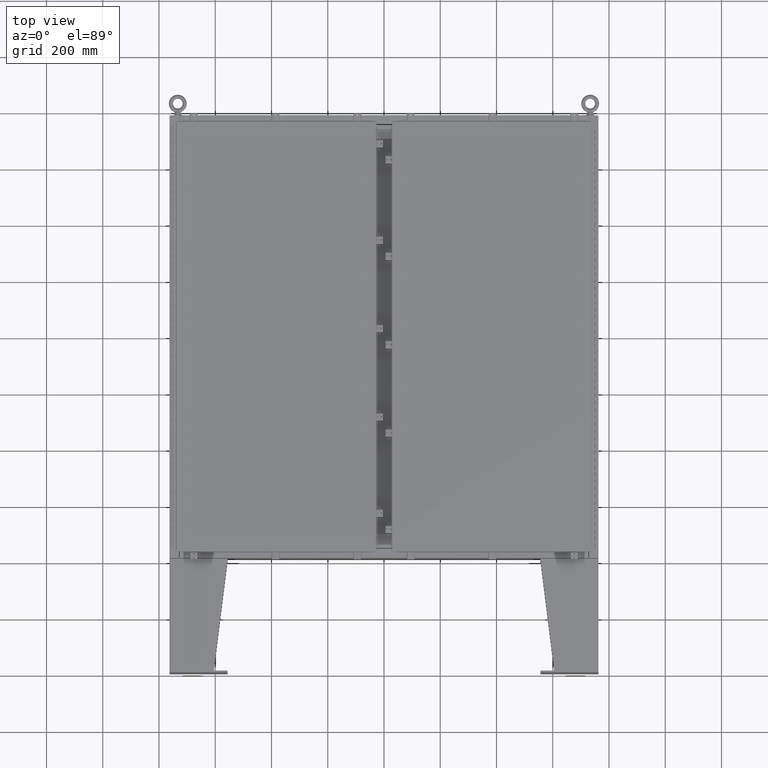
[diagram: clean part render]
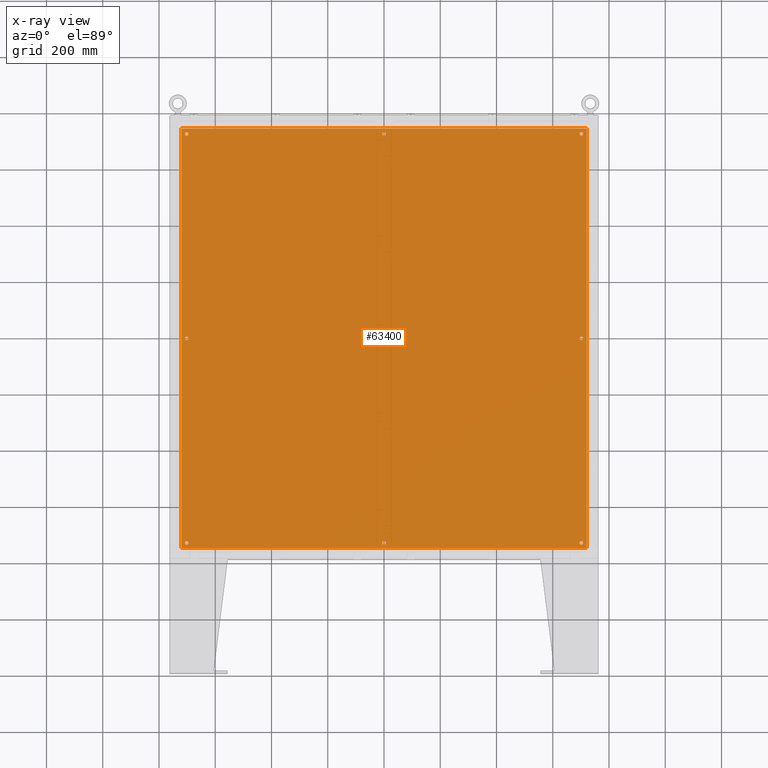
[diagram: x-ray — body ghosted, one internal face saturated and labeled with its STEP entity id]
A machine part, top view, then the same camera in x-ray: the body is ghosted and one INTERNAL B-rep face — a face not visible from any outside direction — is saturated and labeled: STEP entity #63400.
In plain terms, the highlighted planar face has unit normal (0, 0, -1).
Its self-contained STEP definition (entity closure, byte-faithful):
#2249 = AXIS2_PLACEMENT_3D ( 'NONE', #31553, #69116, #36971 ) ;
#2397 = CARTESIAN_POINT ( 'NONE',  ( -27.62500000000000400, 28.62500000000000700, -0.1039999999999999800 ) ) ;
#2620 = EDGE_CURVE ( 'NONE', #36526, #34039, #65195, .T. ) ;
#2986 = AXIS2_PLACEMENT_3D ( 'NONE', #44059, #11764, #49449 ) ;
#3562 = ORIENTED_EDGE ( 'NONE', *, *, #7364, .F. ) ;
#4030 = ORIENTED_EDGE ( 'NONE', *, *, #54769, .T. ) ;
#4086 = AXIS2_PLACEMENT_3D ( 'NONE', #57602, #25664, #63273 ) ;
#4598 = AXIS2_PLACEMENT_3D ( 'NONE', #64057, #31849, #69413 ) ;
#4670 = CIRCLE ( 'NONE', #55174, 0.2499999999999987000 ) ;
#4764 = DIRECTION ( 'NONE',  ( -0.0000000000000000000, -0.0000000000000000000, 1.000000000000000000 ) ) ;
#5842 = ORIENTED_EDGE ( 'NONE', *, *, #46786, .T. ) ;
#6297 = ORIENTED_EDGE ( 'NONE', *, *, #10987, .T. ) ;
#6422 = DIRECTION ( 'NONE',  ( -1.000000000000000000, -0.0000000000000000000, -0.0000000000000000000 ) ) ;
#6953 = VECTOR ( 'NONE', #6422, 39.37007874015748100 ) ;
#7103 = DIRECTION ( 'NONE',  ( -0.0000000000000000000, -0.0000000000000000000, 1.000000000000000000 ) ) ;
#7364 = EDGE_CURVE ( 'NONE', #41409, #52599, #21276, .T. ) ;
#7619 = CARTESIAN_POINT ( 'NONE',  ( -27.37500000000000400, -5.200841675074779300E-015, -0.1039999999999999800 ) ) ;
#7777 = DIRECTION ( 'NONE',  ( -0.0000000000000000000, -0.0000000000000000000, 1.000000000000000000 ) ) ;
#7827 = DIRECTION ( 'NONE',  ( -1.000000000000000000, 0.0000000000000000000, 0.0000000000000000000 ) ) ;
#7966 = VERTEX_POINT ( 'NONE', #68700 ) ;
#10523 = ORIENTED_EDGE ( 'NONE', *, *, #49470, .T. ) ;
#10987 = EDGE_CURVE ( 'NONE', #49627, #58128, #25493, .T. ) ;
#11485 = ORIENTED_EDGE ( 'NONE', *, *, #42987, .T. ) ;
#11565 = CIRCLE ( 'NONE', #2986, 0.2499999999999987000 ) ;
#11764 = DIRECTION ( 'NONE',  ( -0.0000000000000000000, -0.0000000000000000000, 1.000000000000000000 ) ) ;
#11771 = EDGE_LOOP ( 'NONE', ( #34111, #13065 ) ) ;
#11855 = CARTESIAN_POINT ( 'NONE',  ( 28.50000000000000400, 29.38300000000000600, -0.1040000000000009400 ) ) ;
#11898 = VERTEX_POINT ( 'NONE', #66184 ) ;
#12108 = ORIENTED_EDGE ( 'NONE', *, *, #62188, .F. ) ;
#12625 = EDGE_LOOP ( 'NONE', ( #32720, #12108, #3562, #34897 ) ) ;
#12776 = FACE_BOUND ( 'NONE', #15218, .T. ) ;
#13038 = DIRECTION ( 'NONE',  ( -0.0000000000000000000, -0.0000000000000000000, 1.000000000000000000 ) ) ;
#13065 = ORIENTED_EDGE ( 'NONE', *, *, #64569, .T. ) ;
#13377 = DIRECTION ( 'NONE',  ( -0.0000000000000000000, -0.0000000000000000000, 1.000000000000000000 ) ) ;
#14245 = AXIS2_PLACEMENT_3D ( 'NONE', #37088, #4764, #42525 ) ;
#14456 = FACE_BOUND ( 'NONE', #27736, .T. ) ;
#14746 = VERTEX_POINT ( 'NONE', #44681 ) ;
#14893 = CIRCLE ( 'NONE', #23040, 0.2500000000000010000 ) ;
#15086 = CARTESIAN_POINT ( 'NONE',  ( 27.62500000000000400, 1.565331890214347700E-015, -0.1039999999999999800 ) ) ;
#15218 = EDGE_LOOP ( 'NONE', ( #6297, #61577 ) ) ;
#15375 = DIRECTION ( 'NONE',  ( -0.0000000000000000000, -0.0000000000000000000, 1.000000000000000000 ) ) ;
#15809 = CARTESIAN_POINT ( 'NONE',  ( 0.0000000000000000000, -28.62500000000000700, -0.1039999999999999800 ) ) ;
#16244 = VERTEX_POINT ( 'NONE', #66979 ) ;
#16528 = CARTESIAN_POINT ( 'NONE',  ( -27.62500000000000400, -28.62500000000000700, -0.1039999999999999800 ) ) ;
#16819 = DIRECTION ( 'NONE',  ( -0.0000000000000000000, -0.0000000000000000000, 1.000000000000000000 ) ) ;
#18018 = CARTESIAN_POINT ( 'NONE',  ( -28.50000000000000000, -29.38299999999999600, -0.1040000000000009400 ) ) ;
#18348 = EDGE_LOOP ( 'NONE', ( #43219, #63351 ) ) ;
#19722 = EDGE_CURVE ( 'NONE', #47028, #62054, #67665, .T. ) ;
#20518 = DIRECTION ( 'NONE',  ( -1.000000000000000000, 0.0000000000000000000, 0.0000000000000000000 ) ) ;
#20728 = AXIS2_PLACEMENT_3D ( 'NONE', #45330, #13038, #50707 ) ;
#21229 = DIRECTION ( 'NONE',  ( -1.000000000000000000, 0.0000000000000000000, 0.0000000000000000000 ) ) ;
#21276 = LINE ( 'NONE', #11855, #6953 ) ;
#21677 = CARTESIAN_POINT ( 'NONE',  ( 27.87500000000001800, -28.62499999999999600, -0.1039999999999999800 ) ) ;
#21959 = DIRECTION ( 'NONE',  ( -1.000000000000000000, 0.0000000000000000000, 0.0000000000000000000 ) ) ;
#22248 = CARTESIAN_POINT ( 'NONE',  ( -0.2499999999999998300, 28.62500000000000700, -0.1039999999999999800 ) ) ;
#23040 = AXIS2_PLACEMENT_3D ( 'NONE', #40073, #7777, #45495 ) ;
#23494 = CARTESIAN_POINT ( 'NONE',  ( -28.38299999999999600, 29.38299999999999200, -0.1039999999999921100 ) ) ;
#23541 = CARTESIAN_POINT ( 'NONE',  ( 27.62500000000002100, -28.62499999999999600, -0.1039999999999999800 ) ) ;
#23932 = CARTESIAN_POINT ( 'NONE',  ( 27.37500000000002100, -28.62499999999999600, -0.1039999999999999800 ) ) ;
#24023 = CIRCLE ( 'NONE', #14245, 0.2499999999999998300 ) ;
#25493 = CIRCLE ( 'NONE', #44484, 0.2499999999999987000 ) ;
#25664 = DIRECTION ( 'NONE',  ( 0.0000000000000000000, 0.0000000000000000000, -1.000000000000000000 ) ) ;
#25867 = CIRCLE ( 'NONE', #47058, 0.2499999999999987000 ) ;
#26312 = ORIENTED_EDGE ( 'NONE', *, *, #2620, .T. ) ;
#26499 = VERTEX_POINT ( 'NONE', #64661 ) ;
#26504 = DIRECTION ( 'NONE',  ( -0.0000000000000000000, -0.0000000000000000000, 1.000000000000000000 ) ) ;
#26784 = CARTESIAN_POINT ( 'NONE',  ( -0.2500000000000010000, -28.62500000000000700, -0.1039999999999999800 ) ) ;
#27105 = FACE_BOUND ( 'NONE', #66012, .T. ) ;
#27736 = EDGE_LOOP ( 'NONE', ( #33058, #26312 ) ) ;
#27885 = VECTOR ( 'NONE', #44913, 39.37007874015748100 ) ;
#28134 = VERTEX_POINT ( 'NONE', #33888 ) ;
#28184 = EDGE_CURVE ( 'NONE', #11898, #41409, #66382, .T. ) ;
#28914 = DIRECTION ( 'NONE',  ( 0.0000000000000000000, 1.000000000000000000, 0.0000000000000000000 ) ) ;
#28940 = DIRECTION ( 'NONE',  ( -1.000000000000000000, 0.0000000000000000000, 0.0000000000000000000 ) ) ;
#30581 = CARTESIAN_POINT ( 'NONE',  ( 27.37500000000000400, 1.595948060193031100E-015, -0.1039999999999999800 ) ) ;
#30841 = EDGE_CURVE ( 'NONE', #58128, #49627, #62272, .T. ) ;
#31353 = VERTEX_POINT ( 'NONE', #69377 ) ;
#31479 = VECTOR ( 'NONE', #55701, 39.37007874015748100 ) ;
#31553 = CARTESIAN_POINT ( 'NONE',  ( -27.62500000000000400, 28.62500000000000700, -0.1039999999999999800 ) ) ;
#31849 = DIRECTION ( 'NONE',  ( -0.0000000000000000000, -0.0000000000000000000, 1.000000000000000000 ) ) ;
#32371 = CARTESIAN_POINT ( 'NONE',  ( 28.38300000000000600, 29.38299999999999200, -0.1040000000000009400 ) ) ;
#32720 = ORIENTED_EDGE ( 'NONE', *, *, #68374, .F. ) ;
#33058 = ORIENTED_EDGE ( 'NONE', *, *, #51186, .T. ) ;
#33538 = CARTESIAN_POINT ( 'NONE',  ( 0.2499999999999998300, 28.62500000000000700, -0.1039999999999999800 ) ) ;
#33885 = VERTEX_POINT ( 'NONE', #58909 ) ;
#33888 = CARTESIAN_POINT ( 'NONE',  ( 27.87500000000000000, 28.62500000000001400, -0.1039999999999999800 ) ) ;
#34039 = VERTEX_POINT ( 'NONE', #33538 ) ;
#34111 = ORIENTED_EDGE ( 'NONE', *, *, #48853, .T. ) ;
#34472 = EDGE_LOOP ( 'NONE', ( #4030, #61659 ) ) ;
#34897 = ORIENTED_EDGE ( 'NONE', *, *, #28184, .F. ) ;
#36526 = VERTEX_POINT ( 'NONE', #22248 ) ;
#36971 = DIRECTION ( 'NONE',  ( -1.000000000000000000, 0.0000000000000000000, 0.0000000000000000000 ) ) ;
#37088 = CARTESIAN_POINT ( 'NONE',  ( 0.0000000000000000000, 28.62500000000000700, -0.1039999999999999800 ) ) ;
#37112 = EDGE_CURVE ( 'NONE', #62054, #47028, #14893, .T. ) ;
#37940 = EDGE_CURVE ( 'NONE', #33885, #7966, #53893, .T. ) ;
#37961 = AXIS2_PLACEMENT_3D ( 'NONE', #47671, #15375, #53039 ) ;
#39397 = CARTESIAN_POINT ( 'NONE',  ( 0.0000000000000000000, 28.62500000000000700, -0.1039999999999999800 ) ) ;
#39761 = FACE_OUTER_BOUND ( 'NONE', #12625, .T. ) ;
#40073 = CARTESIAN_POINT ( 'NONE',  ( 0.0000000000000000000, -28.62500000000000700, -0.1039999999999999800 ) ) ;
#40121 = DIRECTION ( 'NONE',  ( -0.0000000000000000000, -0.0000000000000000000, 1.000000000000000000 ) ) ;
#40274 = VERTEX_POINT ( 'NONE', #65658 ) ;
#40595 = VERTEX_POINT ( 'NONE', #30581 ) ;
#40872 = AXIS2_PLACEMENT_3D ( 'NONE', #15809, #53465, #21229 ) ;
#41188 = AXIS2_PLACEMENT_3D ( 'NONE', #49093, #16819, #54463 ) ;
#41409 = VERTEX_POINT ( 'NONE', #32371 ) ;
#41438 = FACE_BOUND ( 'NONE', #11771, .T. ) ;
#42146 = ORIENTED_EDGE ( 'NONE', *, *, #52072, .T. ) ;
#42322 = CARTESIAN_POINT ( 'NONE',  ( 0.2500000000000010000, -28.62500000000000700, -0.1039999999999999800 ) ) ;
#42525 = DIRECTION ( 'NONE',  ( -1.000000000000000000, 0.0000000000000000000, 0.0000000000000000000 ) ) ;
#42987 = EDGE_CURVE ( 'NONE', #7966, #33885, #11565, .T. ) ;
#43219 = ORIENTED_EDGE ( 'NONE', *, *, #19722, .T. ) ;
#44059 = CARTESIAN_POINT ( 'NONE',  ( -27.62500000000000400, -28.62500000000000700, -0.1039999999999999800 ) ) ;
#44484 = AXIS2_PLACEMENT_3D ( 'NONE', #23541, #61162, #28940 ) ;
#44681 = CARTESIAN_POINT ( 'NONE',  ( -27.87500000000000000, 28.62500000000000700, -0.1039999999999999800 ) ) ;
#44850 = DIRECTION ( 'NONE',  ( -1.000000000000000000, 0.0000000000000000000, 0.0000000000000000000 ) ) ;
#44913 = DIRECTION ( 'NONE',  ( 1.000000000000000000, -0.0000000000000000000, -0.0000000000000000000 ) ) ;
#45330 = CARTESIAN_POINT ( 'NONE',  ( 27.62500000000000400, 28.62500000000001400, -0.1039999999999999800 ) ) ;
#45495 = DIRECTION ( 'NONE',  ( -1.000000000000000000, 0.0000000000000000000, 0.0000000000000000000 ) ) ;
#45681 = CARTESIAN_POINT ( 'NONE',  ( 27.62500000000000400, 1.565331890214347700E-015, -0.1039999999999999800 ) ) ;
#46064 = EDGE_CURVE ( 'NONE', #40274, #28134, #66509, .T. ) ;
#46786 = EDGE_CURVE ( 'NONE', #14746, #31353, #66522, .T. ) ;
#47028 = VERTEX_POINT ( 'NONE', #42322 ) ;
#47058 = AXIS2_PLACEMENT_3D ( 'NONE', #58679, #26504, #64103 ) ;
#47671 = CARTESIAN_POINT ( 'NONE',  ( 27.62500000000000400, 28.62500000000001400, -0.1039999999999999800 ) ) ;
#47818 = EDGE_LOOP ( 'NONE', ( #58548, #5842 ) ) ;
#47881 = AXIS2_PLACEMENT_3D ( 'NONE', #16528, #54181, #21959 ) ;
#48853 = EDGE_CURVE ( 'NONE', #57278, #62281, #25867, .T. ) ;
#49093 = CARTESIAN_POINT ( 'NONE',  ( 27.62500000000002100, -28.62499999999999600, -0.1039999999999999800 ) ) ;
#49223 = EDGE_CURVE ( 'NONE', #31353, #14746, #61165, .T. ) ;
#49449 = DIRECTION ( 'NONE',  ( -1.000000000000000000, 0.0000000000000000000, 0.0000000000000000000 ) ) ;
#49470 = EDGE_CURVE ( 'NONE', #40595, #26499, #4670, .T. ) ;
#49627 = VERTEX_POINT ( 'NONE', #21677 ) ;
#49801 = EDGE_LOOP ( 'NONE', ( #42146, #10523 ) ) ;
#50444 = VECTOR ( 'NONE', #28914, 39.37007874015748100 ) ;
#50707 = DIRECTION ( 'NONE',  ( -1.000000000000000000, 0.0000000000000000000, 0.0000000000000000000 ) ) ;
#51048 = DIRECTION ( 'NONE',  ( -1.000000000000000000, 0.0000000000000000000, 0.0000000000000000000 ) ) ;
#51186 = EDGE_CURVE ( 'NONE', #34039, #36526, #24023, .T. ) ;
#52072 = EDGE_CURVE ( 'NONE', #26499, #40595, #54187, .T. ) ;
#52599 = VERTEX_POINT ( 'NONE', #64383 ) ;
#52757 = DIRECTION ( 'NONE',  ( -0.0000000000000000000, -0.0000000000000000000, 1.000000000000000000 ) ) ;
#53039 = DIRECTION ( 'NONE',  ( -1.000000000000000000, 0.0000000000000000000, 0.0000000000000000000 ) ) ;
#53465 = DIRECTION ( 'NONE',  ( -0.0000000000000000000, -0.0000000000000000000, 1.000000000000000000 ) ) ;
#53627 = CIRCLE ( 'NONE', #4598, 0.2499999999999987000 ) ;
#53893 = CIRCLE ( 'NONE', #47881, 0.2499999999999987000 ) ;
#54026 = FACE_BOUND ( 'NONE', #47818, .T. ) ;
#54181 = DIRECTION ( 'NONE',  ( -0.0000000000000000000, -0.0000000000000000000, 1.000000000000000000 ) ) ;
#54187 = CIRCLE ( 'NONE', #67906, 0.2499999999999987000 ) ;
#54463 = DIRECTION ( 'NONE',  ( -1.000000000000000000, 0.0000000000000000000, 0.0000000000000000000 ) ) ;
#54769 = EDGE_CURVE ( 'NONE', #28134, #40274, #67222, .T. ) ;
#54851 = AXIS2_PLACEMENT_3D ( 'NONE', #39397, #7103, #44850 ) ;
#55174 = AXIS2_PLACEMENT_3D ( 'NONE', #15086, #52757, #20518 ) ;
#55701 = DIRECTION ( 'NONE',  ( 0.0000000000000000000, -1.000000000000000000, 0.0000000000000000000 ) ) ;
#55703 = FACE_BOUND ( 'NONE', #18348, .T. ) ;
#55719 = CARTESIAN_POINT ( 'NONE',  ( 28.38300000000000600, -29.38299999999999200, -0.1040000000000009400 ) ) ;
#56449 = LINE ( 'NONE', #18018, #27885 ) ;
#56668 = LINE ( 'NONE', #23494, #31479 ) ;
#57278 = VERTEX_POINT ( 'NONE', #7619 ) ;
#57359 = FACE_BOUND ( 'NONE', #49801, .T. ) ;
#57602 = CARTESIAN_POINT ( 'NONE',  ( 0.0000000000000000000, 0.0000000000000000000, -0.1039999999999999800 ) ) ;
#57830 = PLANE ( 'NONE',  #4086 ) ;
#58113 = ORIENTED_EDGE ( 'NONE', *, *, #37940, .T. ) ;
#58128 = VERTEX_POINT ( 'NONE', #23932 ) ;
#58548 = ORIENTED_EDGE ( 'NONE', *, *, #49223, .T. ) ;
#58679 = CARTESIAN_POINT ( 'NONE',  ( -27.62500000000000400, -5.200841675074779300E-015, -0.1039999999999999800 ) ) ;
#58909 = CARTESIAN_POINT ( 'NONE',  ( -27.87500000000000000, -28.62500000000000700, -0.1039999999999999800 ) ) ;
#61162 = DIRECTION ( 'NONE',  ( -0.0000000000000000000, -0.0000000000000000000, 1.000000000000000000 ) ) ;
#61165 = CIRCLE ( 'NONE', #63685, 0.2499999999999987000 ) ;
#61577 = ORIENTED_EDGE ( 'NONE', *, *, #30841, .T. ) ;
#61659 = ORIENTED_EDGE ( 'NONE', *, *, #46064, .T. ) ;
#61816 = CARTESIAN_POINT ( 'NONE',  ( -27.87500000000000000, -5.170225505096096300E-015, -0.1039999999999999800 ) ) ;
#62054 = VERTEX_POINT ( 'NONE', #26784 ) ;
#62188 = EDGE_CURVE ( 'NONE', #52599, #16244, #56668, .T. ) ;
#62272 = CIRCLE ( 'NONE', #41188, 0.2499999999999987000 ) ;
#62281 = VERTEX_POINT ( 'NONE', #61816 ) ;
#63273 = DIRECTION ( 'NONE',  ( -1.000000000000000000, 0.0000000000000000000, -0.0000000000000000000 ) ) ;
#63351 = ORIENTED_EDGE ( 'NONE', *, *, #37112, .T. ) ;
#63400 = ADVANCED_FACE ( 'NONE', ( #55703, #14456, #57359, #41438, #27105, #12776, #68274, #54026, #39761 ), #57830, .T. ) ;
#63685 = AXIS2_PLACEMENT_3D ( 'NONE', #2397, #40121, #7827 ) ;
#64057 = CARTESIAN_POINT ( 'NONE',  ( -27.62500000000000400, -5.200841675074779300E-015, -0.1039999999999999800 ) ) ;
#64103 = DIRECTION ( 'NONE',  ( -1.000000000000000000, 0.0000000000000000000, 0.0000000000000000000 ) ) ;
#64383 = CARTESIAN_POINT ( 'NONE',  ( -28.38299999999999600, 29.38299999999999200, -0.1039999999999921100 ) ) ;
#64569 = EDGE_CURVE ( 'NONE', #62281, #57278, #53627, .T. ) ;
#64661 = CARTESIAN_POINT ( 'NONE',  ( 27.87500000000000000, 1.565331890214347700E-015, -0.1039999999999999800 ) ) ;
#65195 = CIRCLE ( 'NONE', #54851, 0.2499999999999998300 ) ;
#65658 = CARTESIAN_POINT ( 'NONE',  ( 27.37500000000000400, 28.62500000000001400, -0.1039999999999999800 ) ) ;
#66012 = EDGE_LOOP ( 'NONE', ( #11485, #58113 ) ) ;
#66184 = CARTESIAN_POINT ( 'NONE',  ( 28.38300000000000600, -29.38299999999999200, -0.1040000000000009400 ) ) ;
#66382 = LINE ( 'NONE', #55719, #50444 ) ;
#66509 = CIRCLE ( 'NONE', #20728, 0.2499999999999987000 ) ;
#66522 = CIRCLE ( 'NONE', #2249, 0.2499999999999987000 ) ;
#66979 = CARTESIAN_POINT ( 'NONE',  ( -28.38299999999999600, -29.38299999999999600, -0.1040000000000009400 ) ) ;
#67222 = CIRCLE ( 'NONE', #37961, 0.2499999999999987000 ) ;
#67665 = CIRCLE ( 'NONE', #40872, 0.2500000000000010000 ) ;
#67906 = AXIS2_PLACEMENT_3D ( 'NONE', #45681, #13377, #51048 ) ;
#68274 = FACE_BOUND ( 'NONE', #34472, .T. ) ;
#68374 = EDGE_CURVE ( 'NONE', #16244, #11898, #56449, .T. ) ;
#68700 = CARTESIAN_POINT ( 'NONE',  ( -27.37500000000000400, -28.62500000000000700, -0.1039999999999999800 ) ) ;
#69116 = DIRECTION ( 'NONE',  ( -0.0000000000000000000, -0.0000000000000000000, 1.000000000000000000 ) ) ;
#69377 = CARTESIAN_POINT ( 'NONE',  ( -27.37500000000000400, 28.62500000000000700, -0.1039999999999999800 ) ) ;
#69413 = DIRECTION ( 'NONE',  ( -1.000000000000000000, 0.0000000000000000000, 0.0000000000000000000 ) ) ;